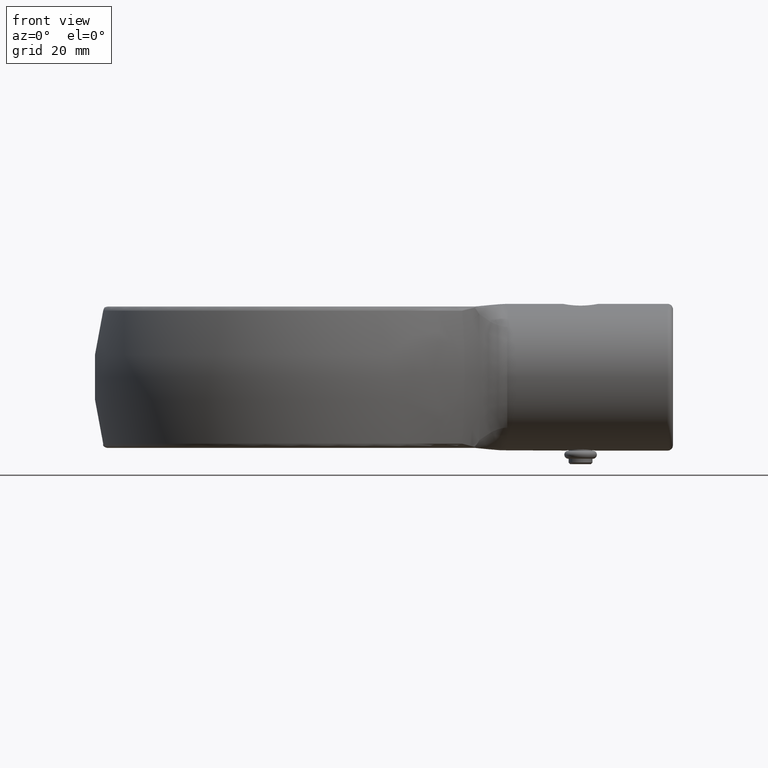
[diagram: clean part render]
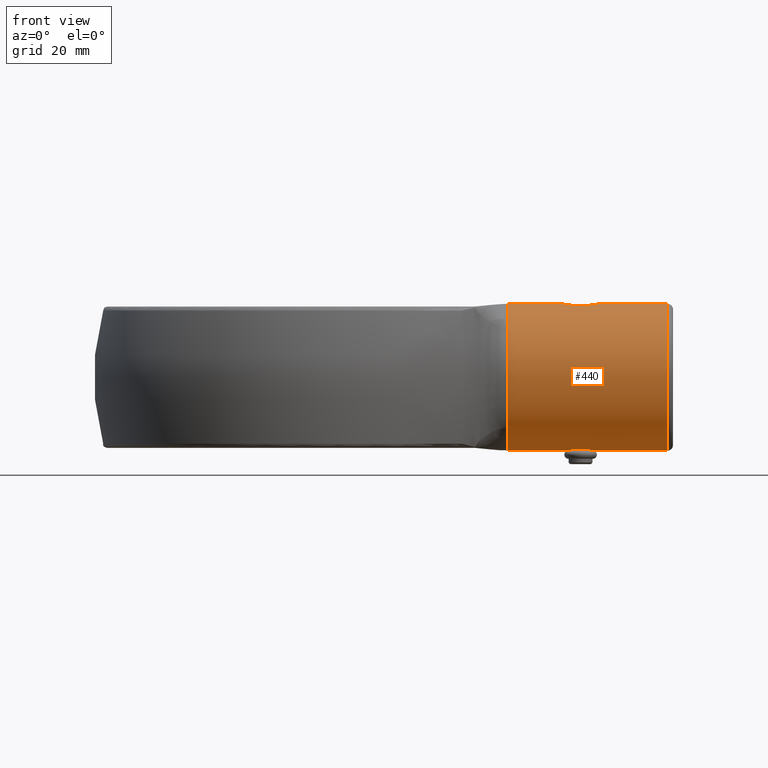
[diagram: same view with one face highlighted and labeled with its STEP entity id]
A machine part, front view. The second image highlights one B-rep face of the part: STEP entity #440.
In plain terms, the highlighted cylindrical surface (bore or boss wall) has radius 13.5 mm, axis along (1, 0, 0).
Its self-contained STEP definition (entity closure, byte-faithful):
#440 = ADVANCED_FACE( '', ( #895, #896, #897, #898 ), #899, .T. );
#895 = FACE_OUTER_BOUND( '', #2933, .T. );
#896 = FACE_BOUND( '', #2934, .T. );
#897 = FACE_OUTER_BOUND( '', #2935, .T. );
#898 = FACE_BOUND( '', #2936, .T. );
#899 = CYLINDRICAL_SURFACE( '', #2937, 13.5000000000000 );
#2933 = EDGE_LOOP( '', ( #4112 ) );
#2934 = EDGE_LOOP( '', ( #4113 ) );
#2935 = EDGE_LOOP( '', ( #4114, #4115, #4116, #4117, #4118, #4119, #4120, #4121 ) );
#2936 = EDGE_LOOP( '', ( #4122 ) );
#2937 = AXIS2_PLACEMENT_3D( '', #4123, #4124, #4125 );
#4112 = ORIENTED_EDGE( '', *, *, #4764, .T. );
#4113 = ORIENTED_EDGE( '', *, *, #4432, .T. );
#4114 = ORIENTED_EDGE( '', *, *, #4739, .F. );
#4115 = ORIENTED_EDGE( '', *, *, #4805, .T. );
#4116 = ORIENTED_EDGE( '', *, *, #4790, .T. );
#4117 = ORIENTED_EDGE( '', *, *, #4775, .T. );
#4118 = ORIENTED_EDGE( '', *, *, #4578, .T. );
#4119 = ORIENTED_EDGE( '', *, *, #4581, .T. );
#4120 = ORIENTED_EDGE( '', *, *, #4800, .T. );
#4121 = ORIENTED_EDGE( '', *, *, #4806, .T. );
#4122 = ORIENTED_EDGE( '', *, *, #4777, .F. );
#4123 = CARTESIAN_POINT( '', ( 40.0000000000000, 0.000000000000000, 0.000000000000000 ) );
#4124 = DIRECTION( '', ( 1.00000000000000, -0.000000000000000, -0.000000000000000 ) );
#4125 = DIRECTION( '', ( 0.000000000000000, 0.000000000000000, 1.00000000000000 ) );
#4432 = EDGE_CURVE( '', #4846, #4846, #4847, .T. );
#4578 = EDGE_CURVE( '', #5087, #5093, #5095, .T. );
#4581 = EDGE_CURVE( '', #5093, #5098, #5100, .T. );
#4739 = EDGE_CURVE( '', #5331, #5326, #5333, .T. );
#4764 = EDGE_CURVE( '', #5364, #5364, #5365, .T. );
#4775 = EDGE_CURVE( '', #5378, #5087, #5380, .T. );
#4777 = EDGE_CURVE( '', #5382, #5382, #5383, .T. );
#4790 = EDGE_CURVE( '', #5397, #5378, #5398, .T. );
#4800 = EDGE_CURVE( '', #5098, #5407, #5409, .T. );
#4805 = EDGE_CURVE( '', #5331, #5397, #5414, .T. );
#4806 = EDGE_CURVE( '', #5407, #5326, #5415, .T. );
#4846 = VERTEX_POINT( '', #5512 );
#4847 = B_SPLINE_CURVE_WITH_KNOTS( '', 3, ( #5513, #5514, #5515, #5516, #5517, #5518, #5519, #5520, #5521, #5522, #5523, #5524, #5525, #5526, #5527, #5528, #5529, #5530, #5531, #5532, #5533, #5534, #5535, #5536, #5537, #5538, #5539, #5540, #5541, #5542, #5543, #5544, #5545, #5546, #5547, #5548, #5549, #5550, #5551, #5552, #5553, #5554, #5555, #5556, #5557, #5558, #5559, #5560, #5561, #5562, #5563, #5564, #5565, #5566, #5567, #5568, #5569, #5570, #5571, #5572, #5573, #5574 ), .UNSPECIFIED., .T., .F., ( 2, 2, 2, 2, 2, 2, 2, 2, 2, 2, 2, 2, 2, 2, 2, 2, 2, 2, 2, 2, 2, 2, 2, 2, 2, 2, 2, 2, 2, 2, 2, 2, 2 ), ( -0.000613179393503384, 0.000000000000000, 0.000613179393503395, 0.00122635878700679, 0.00183953818051019, 0.00245271757401358, 0.00306589696751698, 0.00367907636102037, 0.00429225575452377, 0.00490543514802716, 0.00551861454153056, 0.00613179393503395, 0.00735815272204072, 0.00858451150904750, 0.00919769090255088, 0.00981087029605427, 0.0104240496895577, 0.0110372290830610, 0.0116504084765644, 0.0122635878700678, 0.0128767672635712, 0.0134899466570746, 0.0141031260505780, 0.0147163054440814, 0.0153294848375847, 0.0159426642310881, 0.0165558436245915, 0.0171690230180949, 0.0177822024115983, 0.0183953818051017, 0.0190085611986050, 0.0196217405921084, 0.0202349199856118 ), .UNSPECIFIED. );
#5087 = VERTEX_POINT( '', #6135 );
#5093 = VERTEX_POINT( '', #6189 );
#5095 = B_SPLINE_CURVE_WITH_KNOTS( '', 3, ( #6194, #6195, #6196, #6197, #6198, #6199 ), .UNSPECIFIED., .F., .F., ( 4, 2, 4 ), ( 0.370750000002670, 0.415133099999610, 0.459516199996551 ), .UNSPECIFIED. );
#5098 = VERTEX_POINT( '', #6202 );
#5100 = B_SPLINE_CURVE_WITH_KNOTS( '', 3, ( #6207, #6208, #6209, #6210, #6211, #6212 ), .UNSPECIFIED., .F., .F., ( 4, 2, 4 ), ( 0.459516199996551, 0.499999999997462, 0.540483799998372 ), .UNSPECIFIED. );
#5326 = VERTEX_POINT( '', #7206 );
#5331 = VERTEX_POINT( '', #7263 );
#5333 = B_SPLINE_CURVE_WITH_KNOTS( '', 3, ( #7268, #7269, #7270, #7271, #7272, #7273, #7274, #7275, #7276, #7277, #7278, #7279 ), .UNSPECIFIED., .F., .F., ( 4, 2, 2, 2, 2, 4 ), ( 0.000000000000000, 0.249622828159454, 0.498722297932164, 0.749610439045977, 0.874805219522989, 1.00000000000000 ), .UNSPECIFIED. );
#5364 = VERTEX_POINT( '', #7657 );
#5365 = CIRCLE( '', #7658, 13.5000000000000 );
#5378 = VERTEX_POINT( '', #7706 );
#5380 = B_SPLINE_CURVE_WITH_KNOTS( '', 3, ( #7711, #7712, #7713, #7714, #7715, #7716, #7717, #7718, #7719, #7720 ), .UNSPECIFIED., .F., .F., ( 4, 2, 2, 2, 4 ), ( 0.129249999999356, 0.189625000000184, 0.250000000001013, 0.310375000001841, 0.370750000002670 ), .UNSPECIFIED. );
#5382 = VERTEX_POINT( '', #7722 );
#5383 = B_SPLINE_CURVE_WITH_KNOTS( '', 3, ( #7723, #7724, #7725, #7726, #7727, #7728, #7729, #7730, #7731, #7732, #7733, #7734, #7735, #7736, #7737, #7738, #7739, #7740, #7741, #7742, #7743, #7744, #7745, #7746, #7747, #7748, #7749, #7750, #7751, #7752, #7753, #7754, #7755, #7756, #7757, #7758, #7759, #7760, #7761, #7762, #7763, #7764, #7765, #7766, #7767, #7768, #7769, #7770, #7771, #7772, #7773, #7774, #7775, #7776, #7777, #7778, #7779, #7780, #7781, #7782, #7783, #7784, #7785, #7786 ), .UNSPECIFIED., .T., .F., ( 2, 2, 2, 2, 2, 2, 2, 2, 2, 2, 2, 2, 2, 2, 2, 2, 2, 2, 2, 2, 2, 2, 2, 2, 2, 2, 2, 2, 2, 2, 2, 2, 2, 2 ), ( -0.000504865605754641, 0.000000000000000, 0.000504865605754651, 0.00100973121150930, 0.00151459681726395, 0.00201946242301860, 0.00252432802877325, 0.00302919363452790, 0.00353405924028256, 0.00403892484603721, 0.00454379045179186, 0.00504865605754651, 0.00555352166330116, 0.00605838726905581, 0.00656325287481046, 0.00706811848056511, 0.00757298408631976, 0.00807784969207441, 0.00858271529782906, 0.00908758090358371, 0.00959244650933837, 0.0100973121150930, 0.0106021777208477, 0.0111070433266023, 0.0121167745381116, 0.0126216401438663, 0.0131265057496209, 0.0136313713553755, 0.0141362369611302, 0.0146411025668848, 0.0151459681726395, 0.0156508337783941, 0.0161556993841487, 0.0166605649899034 ), .UNSPECIFIED. );
#5397 = VERTEX_POINT( '', #7810 );
#5398 = B_SPLINE_CURVE_WITH_KNOTS( '', 3, ( #7811, #7812, #7813, #7814, #7815, #7816 ), .UNSPECIFIED., .F., .F., ( 4, 2, 4 ), ( 0.0404837999983714, 0.0848668999988634, 0.129249999999355 ), .UNSPECIFIED. );
#5407 = VERTEX_POINT( '', #7836 );
#5409 = B_SPLINE_CURVE_WITH_KNOTS( '', 3, ( #7841, #7842, #7843, #7844, #7845, #7846 ), .UNSPECIFIED., .F., .F., ( 4, 2, 4 ), ( 0.540483799998372, 0.584866899998864, 0.629249999999356 ), .UNSPECIFIED. );
#5414 = B_SPLINE_CURVE_WITH_KNOTS( '', 3, ( #7852, #7853, #7854, #7855, #7856, #7857 ), .UNSPECIFIED., .F., .F., ( 4, 2, 4 ), ( 0.959516199996551, 0.999999999997460, 1.04048379999837 ), .UNSPECIFIED. );
#5415 = B_SPLINE_CURVE_WITH_KNOTS( '', 3, ( #7858, #7859, #7860, #7861, #7862, #7863, #7864, #7865, #7866, #7867 ), .UNSPECIFIED., .F., .F., ( 4, 2, 2, 2, 4 ), ( 0.629249999999356, 0.689625000000185, 0.750000000001013, 0.810375000001841, 0.870750000002670 ), .UNSPECIFIED. );
#5512 = CARTESIAN_POINT( '', ( 49.0957662909370, -2.40448638990912, 13.2841426222887 ) );
#5513 = CARTESIAN_POINT( '', ( 49.2685178804551, -2.51563505940565, 13.2640242397434 ) );
#5514 = CARTESIAN_POINT( '', ( 48.9230147014189, -2.29333772041259, 13.3042610048339 ) );
#5515 = CARTESIAN_POINT( '', ( 48.7628206003203, -2.16782500783630, 13.3255655889731 ) );
#5516 = CARTESIAN_POINT( '', ( 48.4681112210532, -1.88704923603764, 13.3682163623797 ) );
#5517 = CARTESIAN_POINT( '', ( 48.3329038709478, -1.73022799084449, 13.3897115045726 ) );
#5518 = CARTESIAN_POINT( '', ( 48.1013763670092, -1.39744276012927, 13.4285225102447 ) );
#5519 = CARTESIAN_POINT( '', ( 48.0034701157493, -1.22041999672423, 13.4460541792485 ) );
#5520 = CARTESIAN_POINT( '', ( 47.8463715986816, -0.843119805742611, 13.4749748405277 ) );
#5521 = CARTESIAN_POINT( '', ( 47.7884336723190, -0.643872999640968, 13.4861270549914 ) );
#5522 = CARTESIAN_POINT( '', ( 47.7203773392293, -0.243113701773961, 13.4992996526134 ) );
#5523 = CARTESIAN_POINT( '', ( 47.7092154729043, -0.0369395494946354, 13.5015116161943 ) );
#5524 = CARTESIAN_POINT( '', ( 47.7354518276913, 0.373786088118923, 13.4963870873977 ) );
#5525 = CARTESIAN_POINT( '', ( 47.7720742736941, 0.574345940429329, 13.4892051639803 ) );
#5526 = CARTESIAN_POINT( '', ( 47.8904053754026, 0.966283530356169, 13.4668045710259 ) );
#5527 = CARTESIAN_POINT( '', ( 47.9725399804958, 1.15674292000480, 13.4515299239830 ) );
#5528 = CARTESIAN_POINT( '', ( 48.1727108873777, 1.51115431997392, 13.4163379541519 ) );
#5529 = CARTESIAN_POINT( '', ( 48.2928350245698, 1.67906690066882, 13.3960687470255 ) );
#5530 = CARTESIAN_POINT( '', ( 48.5627030614471, 1.98554900546221, 13.3540824723701 ) );
#5531 = CARTESIAN_POINT( '', ( 48.7114773964703, 2.12378219699675, 13.3324950131240 ) );
#5532 = CARTESIAN_POINT( '', ( 49.0351757563063, 2.37224890007554, 13.2905345735733 ) );
#5533 = CARTESIAN_POINT( '', ( 49.2100444801884, 2.48185704651596, 13.2702372125315 ) );
#5534 = CARTESIAN_POINT( '', ( 49.7536045998500, 2.75827733557614, 13.2165482046121 ) );
#5535 = CARTESIAN_POINT( '', ( 50.1535602274949, 2.87855903647686, 13.1896362626199 ) );
#5536 = CARTESIAN_POINT( '', ( 50.9617916130990, 2.97824261694060, 13.1674856286741 ) );
#5537 = CARTESIAN_POINT( '', ( 51.3798432582411, 2.95866380832523, 13.1721052936886 ) );
#5538 = CARTESIAN_POINT( '', ( 51.9753927911391, 2.82716463129193, 13.2007254534457 ) );
#5539 = CARTESIAN_POINT( '', ( 52.1717076763221, 2.76593627400524, 13.2138547651664 ) );
#5540 = CARTESIAN_POINT( '', ( 52.5506737084425, 2.60961511064285, 13.2456132436770 ) );
#5541 = CARTESIAN_POINT( '', ( 52.7306001055341, 2.51594057767510, 13.2639508167548 ) );
#5542 = CARTESIAN_POINT( '', ( 53.0713700928395, 2.29725500426612, 13.3035697354153 ) );
#5543 = CARTESIAN_POINT( '', ( 53.2337331500934, 2.17078248443889, 13.3250864914265 ) );
#5544 = CARTESIAN_POINT( '', ( 53.5296450587356, 1.88957672940807, 13.3678616982083 ) );
#5545 = CARTESIAN_POINT( '', ( 53.6619626202418, 1.73662483355610, 13.3888771693640 ) );
#5546 = CARTESIAN_POINT( '', ( 53.8942042207325, 1.40484174107046, 13.4277443135988 ) );
#5547 = CARTESIAN_POINT( '', ( 53.9951265071951, 1.22321106453915, 13.4457948738916 ) );
#5548 = CARTESIAN_POINT( '', ( 54.1524387098405, 0.846724154690583, 13.4747431628601 ) );
#5549 = CARTESIAN_POINT( '', ( 54.2096887024296, 0.651944301906026, 13.4857586831337 ) );
#5550 = CARTESIAN_POINT( '', ( 54.2792559083063, 0.248591673672330, 13.4992192667682 ) );
#5551 = CARTESIAN_POINT( '', ( 54.2906353217040, 0.0402335925953990, 13.5014754197433 ) );
#5552 = CARTESIAN_POINT( '', ( 54.2654087511020, -0.366957670839890, 13.4965476815265 ) );
#5553 = CARTESIAN_POINT( '', ( 54.2287577644047, -0.570996731841883, 13.4893582110926 ) );
#5554 = CARTESIAN_POINT( '', ( 54.1104062092213, -0.964426101569343, 13.4669485968261 ) );
#5555 = CARTESIAN_POINT( '', ( 54.0299630250649, -1.15176431473976, 13.4519751210549 ) );
#5556 = CARTESIAN_POINT( '', ( 53.8289496218944, -1.50888084724570, 13.4166118779297 ) );
#5557 = CARTESIAN_POINT( '', ( 53.7089090520377, -1.67675899558434, 13.3963529538762 ) );
#5558 = CARTESIAN_POINT( '', ( 53.4404146530431, -1.98241360111067, 13.3545434032105 ) );
#5559 = CARTESIAN_POINT( '', ( 53.2893814696561, -2.12308821246023, 13.3326075472671 ) );
#5560 = CARTESIAN_POINT( '', ( 52.9653010724961, -2.37197457376198, 13.2905855472495 ) );
#5561 = CARTESIAN_POINT( '', ( 52.7931167770380, -2.48008451100601, 13.2705724819139 ) );
#5562 = CARTESIAN_POINT( '', ( 52.4293408778658, -2.66544322122504, 13.2345882298577 ) );
#5563 = CARTESIAN_POINT( '', ( 52.2368906501778, -2.74256573683491, 13.2186228847100 ) );
#5564 = CARTESIAN_POINT( '', ( 51.8466264763277, -2.86089146590492, 13.1935195383700 ) );
#5565 = CARTESIAN_POINT( '', ( 51.6471828096656, -2.90307905136374, 13.1841874264643 ) );
#5566 = CARTESIAN_POINT( '', ( 51.2396098956275, -2.95346698986838, 13.1729912629730 ) );
#5567 = CARTESIAN_POINT( '', ( 51.0326972382820, -2.96114882402439, 13.1712450086735 ) );
#5568 = CARTESIAN_POINT( '', ( 50.6254420597647, -2.94188444071707, 13.1755612166615 ) );
#5569 = CARTESIAN_POINT( '', ( 50.4232717504845, -2.91521614207689, 13.1815618981775 ) );
#5570 = CARTESIAN_POINT( '', ( 50.0219425131558, -2.82653456451466, 13.2008621531366 ) );
#5571 = CARTESIAN_POINT( '', ( 49.8253668633053, -2.76480978614152, 13.2140871407957 ) );
#5572 = CARTESIAN_POINT( '', ( 49.4495264791953, -2.60958598805212, 13.2456156175939 ) );
#5573 = CARTESIAN_POINT( '', ( 49.2685178804551, -2.51563505940565, 13.2640242397434 ) );
#5574 = CARTESIAN_POINT( '', ( 48.9230147014189, -2.29333772041259, 13.3042610048339 ) );
#6135 = CARTESIAN_POINT( '', ( 37.5000000000000, -9.79742235859836, -9.28766192185146 ) );
#6189 = CARTESIAN_POINT( '', ( 37.5000000000000, -3.39704686035677, -13.0656099770091 ) );
#6194 = CARTESIAN_POINT( '', ( 37.5000000000000, -9.79741835772133, -9.28765812914025 ) );
#6195 = CARTESIAN_POINT( '', ( 37.5000000000000, -8.93407715600735, -10.1983844738268 ) );
#6196 = CARTESIAN_POINT( '', ( 37.5000000000000, -7.94302022420642, -10.9878665000686 ) );
#6197 = CARTESIAN_POINT( '', ( 37.5000000000000, -5.78165774287045, -12.2636541964371 ) );
#6198 = CARTESIAN_POINT( '', ( 37.5000000000000, -4.61156924229901, -12.7498317490454 ) );
#6199 = CARTESIAN_POINT( '', ( 37.5000000000000, -3.39704600813380, -13.0656066992169 ) );
#6202 = CARTESIAN_POINT( '', ( 37.5000000000000, 3.39704745884891, -13.0656122806213 ) );
#6207 = CARTESIAN_POINT( '', ( 37.5000000000000, -3.39704600813380, -13.0656066992169 ) );
#6208 = CARTESIAN_POINT( '', ( 37.5000000000000, -2.28922533513457, -13.3536390793104 ) );
#6209 = CARTESIAN_POINT( '', ( 37.5000000000000, -1.14465247826568, -13.4999999999817 ) );
#6210 = CARTESIAN_POINT( '', ( 37.5000000000000, 1.14465247783498, -13.5000000000183 ) );
#6211 = CARTESIAN_POINT( '', ( 37.5000000000000, 2.28922533470854, -13.3536390793834 ) );
#6212 = CARTESIAN_POINT( '', ( 37.5000000000000, 3.39704600771696, -13.0656066993253 ) );
#7206 = CARTESIAN_POINT( '', ( 37.5000000000000, 9.79742235859852, 9.28766192185163 ) );
#7263 = CARTESIAN_POINT( '', ( 37.5000000000000, 3.39704686035679, 13.0656099770092 ) );
#7268 = CARTESIAN_POINT( '', ( 37.5000000000000, 3.39704600785063, 13.0656066992905 ) );
#7269 = CARTESIAN_POINT( '', ( 37.5000000000000, 4.00339319759394, 12.9079569745058 ) );
#7270 = CARTESIAN_POINT( '', ( 37.5000000000000, 4.59874119834599, 12.7080324003144 ) );
#7271 = CARTESIAN_POINT( '', ( 37.5000000000000, 5.75472989301099, 12.2279985205396 ) );
#7272 = CARTESIAN_POINT( '', ( 37.5000000000000, 6.31543192967759, 11.9480619140278 ) );
#7273 = CARTESIAN_POINT( '', ( 37.5000000000000, 7.39654068232202, 11.3109541279469 ) );
#7274 = CARTESIAN_POINT( '', ( 37.5000000000000, 7.91662177653013, 10.9532459571185 ) );
#7275 = CARTESIAN_POINT( '', ( 37.5000000000000, 8.65502826990513, 10.3652890169176 ) );
#7276 = CARTESIAN_POINT( '', ( 37.5000000000000, 8.89400126734825, 10.1609779161997 ) );
#7277 = CARTESIAN_POINT( '', ( 37.5000000000000, 9.35711059082172, 9.73618057290544 ) );
#7278 = CARTESIAN_POINT( '', ( 37.5000000000000, 9.58124669412072, 9.51569454004192 ) );
#7279 = CARTESIAN_POINT( '', ( 37.5000000000000, 9.79741835787709, 9.28765812897594 ) );
#7657 = CARTESIAN_POINT( '', ( 67.0000000000000, 0.000000000000000, 13.5000000000000 ) );
#7658 = AXIS2_PLACEMENT_3D( '', #8103, #8104, #8105 );
#7706 = CARTESIAN_POINT( '', ( 37.5000000000000, -9.79741881356908, 9.28765856103357 ) );
#7711 = CARTESIAN_POINT( '', ( 37.5000000000000, -9.79741835783945, 9.28765812901565 ) );
#7712 = CARTESIAN_POINT( '', ( 37.5000000000000, -10.9718344093791, 8.04878335312899 ) );
#7713 = CARTESIAN_POINT( '', ( 37.5000000000000, -11.9080884493465, 6.58494443826082 ) );
#7714 = CARTESIAN_POINT( '', ( 37.5000000000000, -13.1723879349501, 3.41354066383040 ) );
#7715 = CARTESIAN_POINT( '', ( 37.5000000000000, -13.5000000000109, 1.70706290808194 ) );
#7716 = CARTESIAN_POINT( '', ( 37.5000000000000, -13.4999999999891, -1.70706290825362 ) );
#7717 = CARTESIAN_POINT( '', ( 37.5000000000000, -13.1723879349067, -3.41354066399793 ) );
#7718 = CARTESIAN_POINT( '', ( 37.5000000000000, -11.9080884492628, -6.58494443841227 ) );
#7719 = CARTESIAN_POINT( '', ( 37.5000000000000, -10.9718344092768, -8.04878335326853 ) );
#7720 = CARTESIAN_POINT( '', ( 37.5000000000000, -9.79741835772133, -9.28765812914025 ) );
#7722 = CARTESIAN_POINT( '', ( 48.8235825626857, -1.44320232601658, -13.4226363683266 ) );
#7723 = CARTESIAN_POINT( '', ( 48.9290521034356, -1.57635171245395, -13.4083201416971 ) );
#7724 = CARTESIAN_POINT( '', ( 48.7181130219358, -1.31005293957922, -13.4369525949561 ) );
#7725 = CARTESIAN_POINT( '', ( 48.6277838057687, -1.16834584793814, -13.4501948896770 ) );
#7726 = CARTESIAN_POINT( '', ( 48.4779537986875, -0.867379916729153, -13.4729516688342 ) );
#7727 = CARTESIAN_POINT( '', ( 48.4182463746772, -0.706181480656180, -13.4825072379560 ) );
#7728 = CARTESIAN_POINT( '', ( 48.3372258434210, -0.379681678273216, -13.4956487627806 ) );
#7729 = CARTESIAN_POINT( '', ( 48.3149169120262, -0.213265755130889, -13.4993824314043 ) );
#7730 = CARTESIAN_POINT( '', ( 48.3083247664445, 0.126192707759074, -13.5004771660903 ) );
#7731 = CARTESIAN_POINT( '', ( 48.3244748073866, 0.295742187623890, -13.4977654027864 ) );
#7732 = CARTESIAN_POINT( '', ( 48.3932711347641, 0.625000476673160, -13.4865306403966 ) );
#7733 = CARTESIAN_POINT( '', ( 48.4468890426728, 0.788048036345561, -13.4778584289897 ) );
#7734 = CARTESIAN_POINT( '', ( 48.5862714956182, 1.09511355988577, -13.4563893311108 ) );
#7735 = CARTESIAN_POINT( '', ( 48.6716666772795, 1.23981127007947, -13.4436461353038 ) );
#7736 = CARTESIAN_POINT( '', ( 48.8727691784712, 1.51227086706726, -13.4157292094505 ) );
#7737 = CARTESIAN_POINT( '', ( 48.9868051385934, 1.63740910655394, -13.4008129241761 ) );
#7738 = CARTESIAN_POINT( '', ( 49.2355919213667, 1.86261046333226, -13.3713715778478 ) );
#7739 = CARTESIAN_POINT( '', ( 49.3724311208160, 1.96430237908004, -13.3566224714257 ) );
#7740 = CARTESIAN_POINT( '', ( 49.6605975232381, 2.13941825525480, -13.3296938153033 ) );
#7741 = CARTESIAN_POINT( '', ( 49.8114146272686, 2.21297292839528, -13.3175248834797 ) );
#7742 = CARTESIAN_POINT( '', ( 50.1260836965212, 2.33318591832666, -13.2969906999453 ) );
#7743 = CARTESIAN_POINT( '', ( 50.2908836164865, 2.37974681777356, -13.2886352098733 ) );
#7744 = CARTESIAN_POINT( '', ( 50.6214897744980, 2.44261489247409, -13.2772230961468 ) );
#7745 = CARTESIAN_POINT( '', ( 50.7886630975757, 2.45960154952549, -13.2740486071817 ) );
#7746 = CARTESIAN_POINT( '', ( 51.1267812288136, 2.46450124815874, -13.2731397870313 ) );
#7747 = CARTESIAN_POINT( '', ( 51.2972795154264, 2.45205286144040, -13.2754726210904 ) );
#7748 = CARTESIAN_POINT( '', ( 51.6289283642345, 2.39865714662177, -13.2852241396816 ) );
#7749 = CARTESIAN_POINT( '', ( 51.7917544768003, 2.35780517391800, -13.2926272168017 ) );
#7750 = CARTESIAN_POINT( '', ( 52.1111901281134, 2.24661202380781, -13.3118713176433 ) );
#7751 = CARTESIAN_POINT( '', ( 52.2660955487262, 2.17655111079983, -13.3236481404565 ) );
#7752 = CARTESIAN_POINT( '', ( 52.5572175732307, 2.01154568095168, -13.3495564900883 ) );
#7753 = CARTESIAN_POINT( '', ( 52.6948649655122, 1.91615898441906, -13.3637762345783 ) );
#7754 = CARTESIAN_POINT( '', ( 52.9531298282347, 1.69741417189487, -13.3933179470399 ) );
#7755 = CARTESIAN_POINT( '', ( 53.0708233978092, 1.57624725330993, -13.4083092743063 ) );
#7756 = CARTESIAN_POINT( '', ( 53.2785610563761, 1.31460223717613, -13.4364851786851 ) );
#7757 = CARTESIAN_POINT( '', ( 53.3697942260106, 1.17274793572525, -13.4498280770943 ) );
#7758 = CARTESIAN_POINT( '', ( 53.5215873207445, 0.868903932281069, -13.4728697381296 ) );
#7759 = CARTESIAN_POINT( '', ( 53.5799925637117, 0.711560854169317, -13.4822190903213 ) );
#7760 = CARTESIAN_POINT( '', ( 53.6617045811117, 0.385944026240093, -13.4954658184599 ) );
#7761 = CARTESIAN_POINT( '', ( 53.6848547978277, 0.215282509259447, -13.4993383451016 ) );
#7762 = CARTESIAN_POINT( '', ( 53.6918583385253, -0.122249570187116, -13.5005013742791 ) );
#7763 = CARTESIAN_POINT( '', ( 53.6764681991713, -0.289800919898513, -13.4979151154503 ) );
#7764 = CARTESIAN_POINT( '', ( 53.6076242489617, -0.622459413990345, -13.4866690222238 ) );
#7765 = CARTESIAN_POINT( '', ( 53.5545603577377, -0.784146109404056, -13.4780836466122 ) );
#7766 = CARTESIAN_POINT( '', ( 53.4160708207918, -1.09080543074526, -13.4567368785387 ) );
#7767 = CARTESIAN_POINT( '', ( 53.3291295522662, -1.23851028392053, -13.4437599313136 ) );
#7768 = CARTESIAN_POINT( '', ( 53.0293977120639, -1.64540825724529, -13.4021262090635 ) );
#7769 = CARTESIAN_POINT( '', ( 52.7730853483780, -1.87541590214702, -13.3702678441352 ) );
#7770 = CARTESIAN_POINT( '', ( 52.3429970945733, -2.13749303707220, -13.3300013231040 ) );
#7771 = CARTESIAN_POINT( '', ( 52.1903656926596, -2.21224563886056, -13.3176475145004 ) );
#7772 = CARTESIAN_POINT( '', ( 51.8739960279098, -2.33323073711803, -13.2969846361686 ) );
#7773 = CARTESIAN_POINT( '', ( 51.7121939583967, -2.37898302842153, -13.2887724116435 ) );
#7774 = CARTESIAN_POINT( '', ( 51.3816141396830, -2.44221398195868, -13.2772972898968 ) );
#7775 = CARTESIAN_POINT( '', ( 51.2111492144770, -2.45961109893172, -13.2740468362101 ) );
#7776 = CARTESIAN_POINT( '', ( 50.8732636258595, -2.46449484432906, -13.2731409745457 ) );
#7777 = CARTESIAN_POINT( '', ( 50.7056601760747, -2.45237292668322, -13.2754133457621 ) );
#7778 = CARTESIAN_POINT( '', ( 50.3731165930754, -2.39912545837164, -13.2851394237080 ) );
#7779 = CARTESIAN_POINT( '', ( 50.2067810501225, -2.35733113523970, -13.2927103541748 ) );
#7780 = CARTESIAN_POINT( '', ( 49.8888775870480, -2.24657369725544, -13.3118768497893 ) );
#7781 = CARTESIAN_POINT( '', ( 49.7361788914023, -2.17769724643699, -13.3234627421398 ) );
#7782 = CARTESIAN_POINT( '', ( 49.4435854843961, -2.01210036460380, -13.3494747784731 ) );
#7783 = CARTESIAN_POINT( '', ( 49.3030115919518, -1.91446895780713, -13.3640134108514 ) );
#7784 = CARTESIAN_POINT( '', ( 49.0465078925827, -1.69693432774600, -13.3933737244632 ) );
#7785 = CARTESIAN_POINT( '', ( 48.9290521034356, -1.57635171245395, -13.4083201416971 ) );
#7786 = CARTESIAN_POINT( '', ( 48.7181130219358, -1.31005293957922, -13.4369525949561 ) );
#7810 = CARTESIAN_POINT( '', ( 37.5000000000000, -3.39704600785061, 13.0656066992905 ) );
#7811 = CARTESIAN_POINT( '', ( 37.5000000000000, -3.39704600771688, 13.0656066993253 ) );
#7812 = CARTESIAN_POINT( '', ( 37.5000000000000, -4.61156924198934, 12.7498317491672 ) );
#7813 = CARTESIAN_POINT( '', ( 37.5000000000000, -5.78165774266629, 12.2636541965436 ) );
#7814 = CARTESIAN_POINT( '', ( 37.5000000000000, -7.94302022418744, 10.9878665000938 ) );
#7815 = CARTESIAN_POINT( '', ( 37.5000000000000, -8.93407715606796, 10.1983844737860 ) );
#7816 = CARTESIAN_POINT( '', ( 37.5000000000000, -9.79741835783944, 9.28765812901566 ) );
#7836 = CARTESIAN_POINT( '', ( 37.5000000000000, 9.79741881356919, -9.28765856103368 ) );
#7841 = CARTESIAN_POINT( '', ( 37.5000000000000, 3.39704600771696, -13.0656066993253 ) );
#7842 = CARTESIAN_POINT( '', ( 37.5000000000000, 4.61156924198942, -12.7498317491672 ) );
#7843 = CARTESIAN_POINT( '', ( 37.5000000000000, 5.78165774266637, -12.2636541965436 ) );
#7844 = CARTESIAN_POINT( '', ( 37.5000000000000, 7.94302022418751, -10.9878665000938 ) );
#7845 = CARTESIAN_POINT( '', ( 37.5000000000000, 8.93407715606803, -10.1983844737860 ) );
#7846 = CARTESIAN_POINT( '', ( 37.5000000000000, 9.79741835783950, -9.28765812901560 ) );
#7852 = CARTESIAN_POINT( '', ( 37.5000000000000, 3.39704600813379, 13.0656066992169 ) );
#7853 = CARTESIAN_POINT( '', ( 37.5000000000000, 2.28922533513458, 13.3536390793104 ) );
#7854 = CARTESIAN_POINT( '', ( 37.5000000000000, 1.14465247805321, 13.5000000000000 ) );
#7855 = CARTESIAN_POINT( '', ( 37.5000000000000, -1.14465247805321, 13.5000000000000 ) );
#7856 = CARTESIAN_POINT( '', ( 37.5000000000000, -2.28922533470837, 13.3536390793834 ) );
#7857 = CARTESIAN_POINT( '', ( 37.5000000000000, -3.39704600771677, 13.0656066993254 ) );
#7858 = CARTESIAN_POINT( '', ( 37.5000000000000, 9.79741835783950, -9.28765812901560 ) );
#7859 = CARTESIAN_POINT( '', ( 37.5000000000000, 10.9718344093792, -8.04878335312894 ) );
#7860 = CARTESIAN_POINT( '', ( 37.5000000000000, 11.9080884493466, -6.58494443826076 ) );
#7861 = CARTESIAN_POINT( '', ( 37.5000000000000, 13.1723879349501, -3.41354066383033 ) );
#7862 = CARTESIAN_POINT( '', ( 37.5000000000000, 13.5000000000109, -1.70706290808187 ) );
#7863 = CARTESIAN_POINT( '', ( 37.5000000000000, 13.4999999999891, 1.70706290825369 ) );
#7864 = CARTESIAN_POINT( '', ( 37.5000000000000, 13.1723879349067, 3.41354066399799 ) );
#7865 = CARTESIAN_POINT( '', ( 37.5000000000000, 11.9080884492627, 6.58494443841233 ) );
#7866 = CARTESIAN_POINT( '', ( 37.5000000000000, 10.9718344092767, 8.04878335326859 ) );
#7867 = CARTESIAN_POINT( '', ( 37.5000000000000, 9.79741835772129, 9.28765812914030 ) );
#8103 = CARTESIAN_POINT( '', ( 67.0000000000000, 0.000000000000000, 0.000000000000000 ) );
#8104 = DIRECTION( '', ( -1.00000000000000, 0.000000000000000, 0.000000000000000 ) );
#8105 = DIRECTION( '', ( 0.000000000000000, 0.000000000000000, 1.00000000000000 ) );